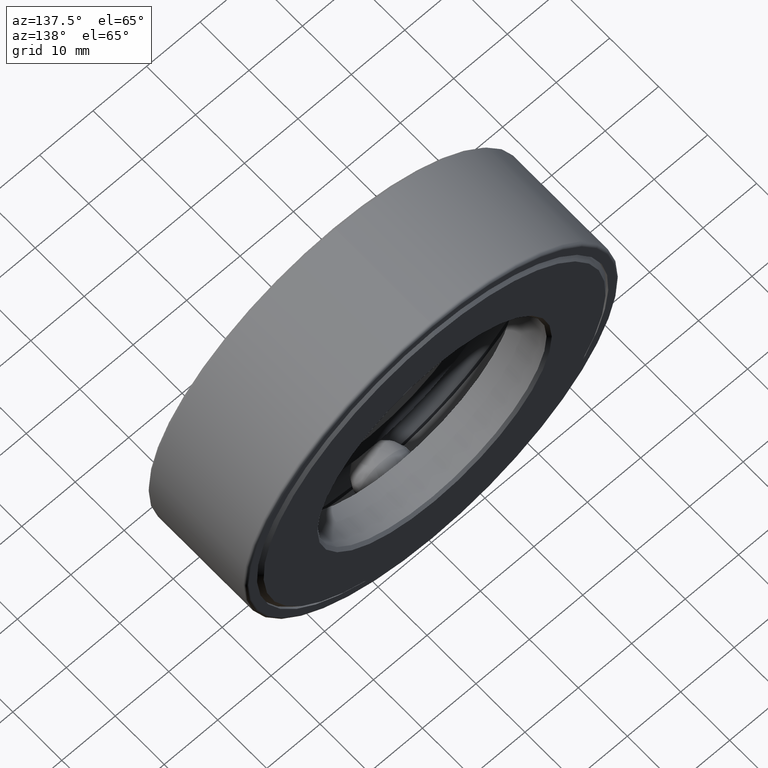
[diagram: clean part render]
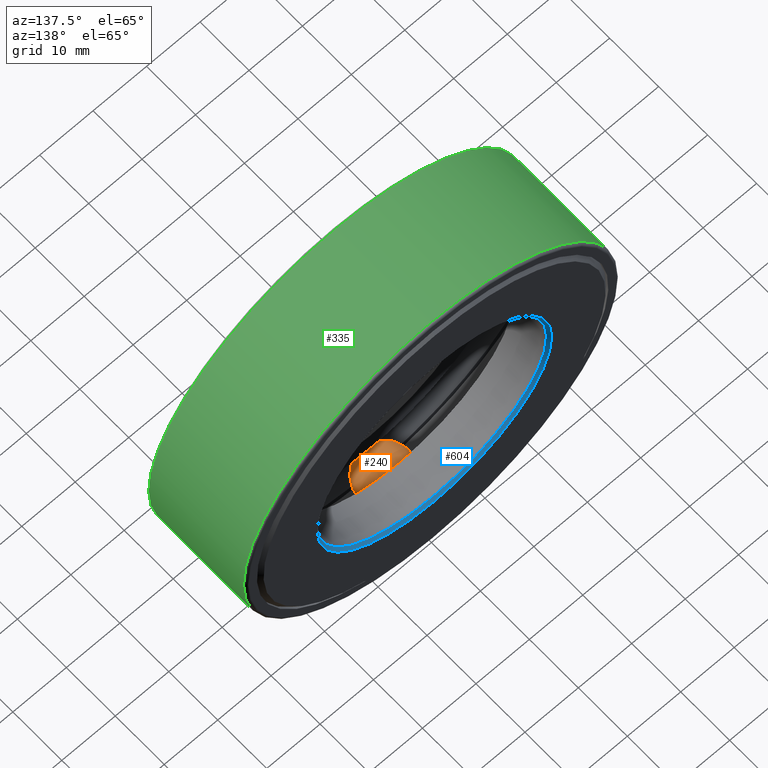
[diagram: same view with three faces highlighted in distinct colors, each labeled with its STEP entity id]
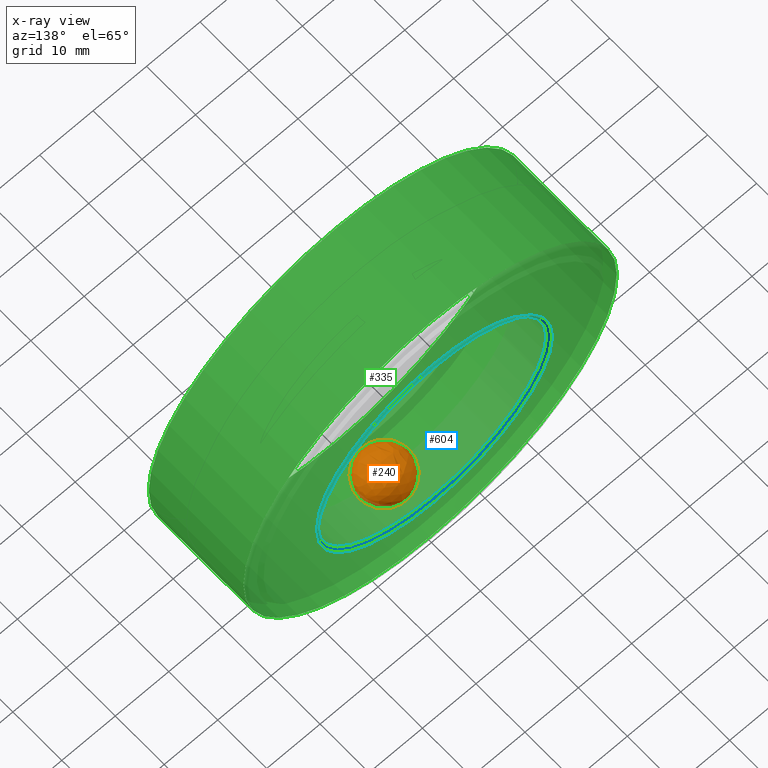
[diagram: x-ray of the same camera — body ghosted, the three highlighted faces saturated]
A machine part, auxiliary view with three faces highlighted in distinct colors.
The next image is the same camera in x-ray (body ghosted, the three faces saturated) — at least one of them is partly hidden behind the body in this view.
Their STEP definitions:

[orange] entity #240 — the highlighted spherical surface has radius 4.7625 mm.
#58 = SPHERICAL_SURFACE ( 'NONE', #187, 0.1874999999999999700 ) ;
#150 = CARTESIAN_POINT ( 'NONE',  ( -1.213464339314931200E-014, 0.4062499999999999400, -1.158500000000000100 ) ) ;
#187 = AXIS2_PLACEMENT_3D ( 'NONE', #150, #299, #485 ) ;
#240 = ADVANCED_FACE ( 'NONE', ( ), #58, .T. ) ;
#299 = DIRECTION ( 'NONE',  ( 1.000000000000000000, 0.0000000000000000000, -1.047444401652940600E-014 ) ) ;
#485 = DIRECTION ( 'NONE',  ( 1.047444401652940600E-014, 0.0000000000000000000, 1.000000000000000000 ) ) ;

[blue] entity #604 — the highlighted conical surface has half-angle 45 deg.
#20 = AXIS2_PLACEMENT_3D ( 'NONE', #184, #528, #231 ) ;
#57 = EDGE_CURVE ( 'NONE', #510, #510, #237, .T. ) ;
#66 = EDGE_LOOP ( 'NONE', ( #332 ) ) ;
#92 = CARTESIAN_POINT ( 'NONE',  ( 0.0000000000000000000, 0.7924999999999997600, 0.0000000000000000000 ) ) ;
#142 = CONICAL_SURFACE ( 'NONE', #290, 0.8437500000000000000, 0.7853981633974482800 ) ;
#146 = EDGE_CURVE ( 'NONE', #372, #372, #149, .T. ) ;
#149 = CIRCLE ( 'NONE', #422, 0.8637500000000001300 ) ;
#184 = CARTESIAN_POINT ( 'NONE',  ( 0.0000000000000000000, 0.7924999999999997600, 0.0000000000000000000 ) ) ;
#199 = DIRECTION ( 'NONE',  ( -0.0000000000000000000, 1.000000000000000000, -0.0000000000000000000 ) ) ;
#231 = DIRECTION ( 'NONE',  ( 0.0000000000000000000, 0.0000000000000000000, 1.000000000000000000 ) ) ;
#237 = CIRCLE ( 'NONE', #20, 0.8437500000000000000 ) ;
#269 = FACE_OUTER_BOUND ( 'NONE', #66, .T. ) ;
#278 = FACE_BOUND ( 'NONE', #417, .T. ) ;
#290 = AXIS2_PLACEMENT_3D ( 'NONE', #92, #517, #334 ) ;
#297 = DIRECTION ( 'NONE',  ( 0.0000000000000000000, 0.0000000000000000000, 1.000000000000000000 ) ) ;
#332 = ORIENTED_EDGE ( 'NONE', *, *, #146, .T. ) ;
#334 = DIRECTION ( 'NONE',  ( 0.0000000000000000000, 0.0000000000000000000, 1.000000000000000000 ) ) ;
#372 = VERTEX_POINT ( 'NONE', #414 ) ;
#414 = CARTESIAN_POINT ( 'NONE',  ( 0.0000000000000000000, 0.8125000000000000000, 0.8637500000000001300 ) ) ;
#417 = EDGE_LOOP ( 'NONE', ( #535 ) ) ;
#422 = AXIS2_PLACEMENT_3D ( 'NONE', #573, #199, #297 ) ;
#462 = CARTESIAN_POINT ( 'NONE',  ( 0.0000000000000000000, 0.7924999999999997600, 0.8437500000000000000 ) ) ;
#510 = VERTEX_POINT ( 'NONE', #462 ) ;
#517 = DIRECTION ( 'NONE',  ( -0.0000000000000000000, 1.000000000000000000, -0.0000000000000000000 ) ) ;
#528 = DIRECTION ( 'NONE',  ( -0.0000000000000000000, 1.000000000000000000, -0.0000000000000000000 ) ) ;
#535 = ORIENTED_EDGE ( 'NONE', *, *, #57, .F. ) ;
#573 = CARTESIAN_POINT ( 'NONE',  ( 0.0000000000000000000, 0.8125000000000000000, 0.0000000000000000000 ) ) ;
#604 = ADVANCED_FACE ( 'NONE', ( #269, #278 ), #142, .F. ) ;

[green] entity #335 — the highlighted cylindrical surface (bore or boss wall) has radius 34.925 mm, axis along (-0, 1, -0).
#17 = FACE_OUTER_BOUND ( 'NONE', #603, .T. ) ;
#27 = DIRECTION ( 'NONE',  ( 0.0000000000000000000, 0.0000000000000000000, 1.000000000000000000 ) ) ;
#29 = AXIS2_PLACEMENT_3D ( 'NONE', #68, #207, #113 ) ;
#62 = CIRCLE ( 'NONE', #84, 1.375000000000000000 ) ;
#68 = CARTESIAN_POINT ( 'NONE',  ( 0.0000000000000000000, 0.0000000000000000000, 0.0000000000000000000 ) ) ;
#69 = VERTEX_POINT ( 'NONE', #137 ) ;
#84 = AXIS2_PLACEMENT_3D ( 'NONE', #543, #585, #355 ) ;
#113 = DIRECTION ( 'NONE',  ( 0.0000000000000000000, 0.0000000000000000000, 1.000000000000000000 ) ) ;
#137 = CARTESIAN_POINT ( 'NONE',  ( 0.0000000000000000000, 0.01499999999999984000, 1.374999999999999300 ) ) ;
#203 = DIRECTION ( 'NONE',  ( -0.0000000000000000000, 1.000000000000000000, -0.0000000000000000000 ) ) ;
#207 = DIRECTION ( 'NONE',  ( -0.0000000000000000000, 1.000000000000000000, -0.0000000000000000000 ) ) ;
#246 = CIRCLE ( 'NONE', #432, 1.374999999999999300 ) ;
#247 = ORIENTED_EDGE ( 'NONE', *, *, #266, .T. ) ;
#254 = VERTEX_POINT ( 'NONE', #281 ) ;
#255 = ORIENTED_EDGE ( 'NONE', *, *, #302, .F. ) ;
#266 = EDGE_CURVE ( 'NONE', #69, #69, #246, .T. ) ;
#281 = CARTESIAN_POINT ( 'NONE',  ( 0.0000000000000000000, 0.7774999999999998600, 1.375000000000000000 ) ) ;
#302 = EDGE_CURVE ( 'NONE', #254, #254, #62, .T. ) ;
#335 = ADVANCED_FACE ( 'NONE', ( #398, #17 ), #532, .T. ) ;
#355 = DIRECTION ( 'NONE',  ( 0.0000000000000000000, 0.0000000000000000000, 1.000000000000000000 ) ) ;
#375 = EDGE_LOOP ( 'NONE', ( #255 ) ) ;
#398 = FACE_OUTER_BOUND ( 'NONE', #375, .T. ) ;
#432 = AXIS2_PLACEMENT_3D ( 'NONE', #588, #203, #27 ) ;
#532 = CYLINDRICAL_SURFACE ( 'NONE', #29, 1.374999999999999800 ) ;
#543 = CARTESIAN_POINT ( 'NONE',  ( 0.0000000000000000000, 0.7774999999999998600, 0.0000000000000000000 ) ) ;
#585 = DIRECTION ( 'NONE',  ( -0.0000000000000000000, 1.000000000000000000, -0.0000000000000000000 ) ) ;
#588 = CARTESIAN_POINT ( 'NONE',  ( 0.0000000000000000000, 0.01499999999999984000, 0.0000000000000000000 ) ) ;
#603 = EDGE_LOOP ( 'NONE', ( #247 ) ) ;